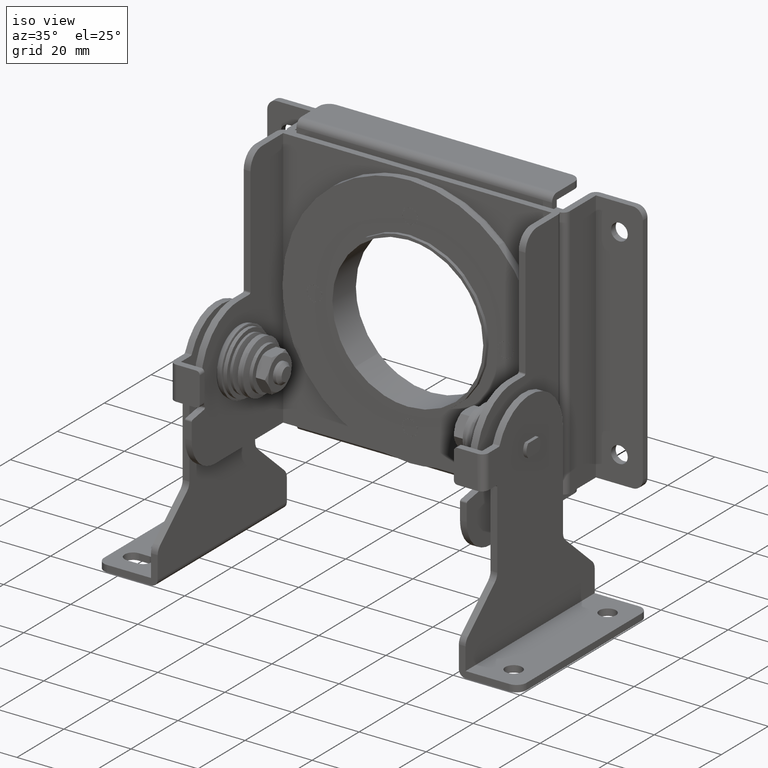
[diagram: clean part render]
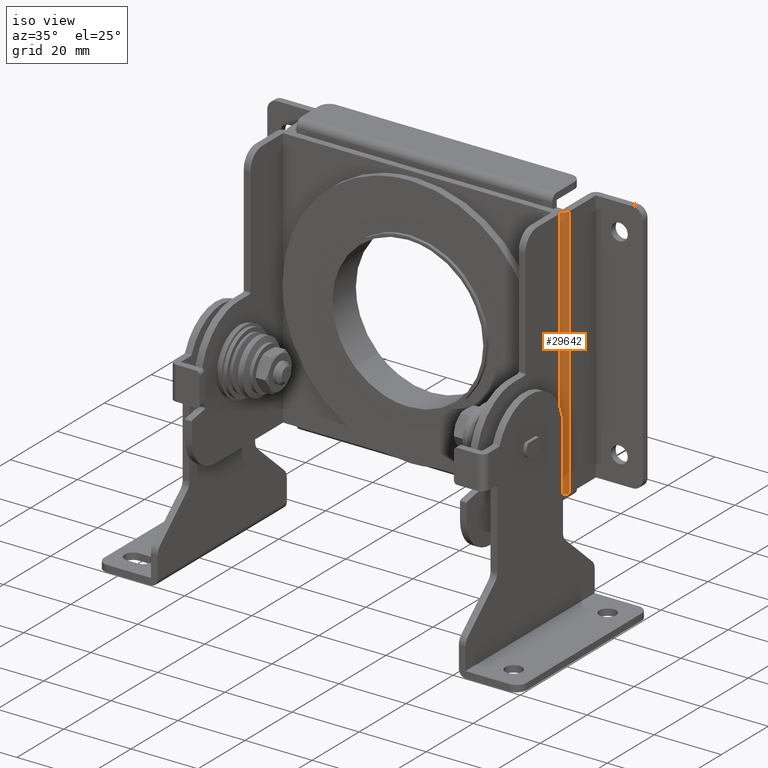
[diagram: same view with one face highlighted and labeled with its STEP entity id]
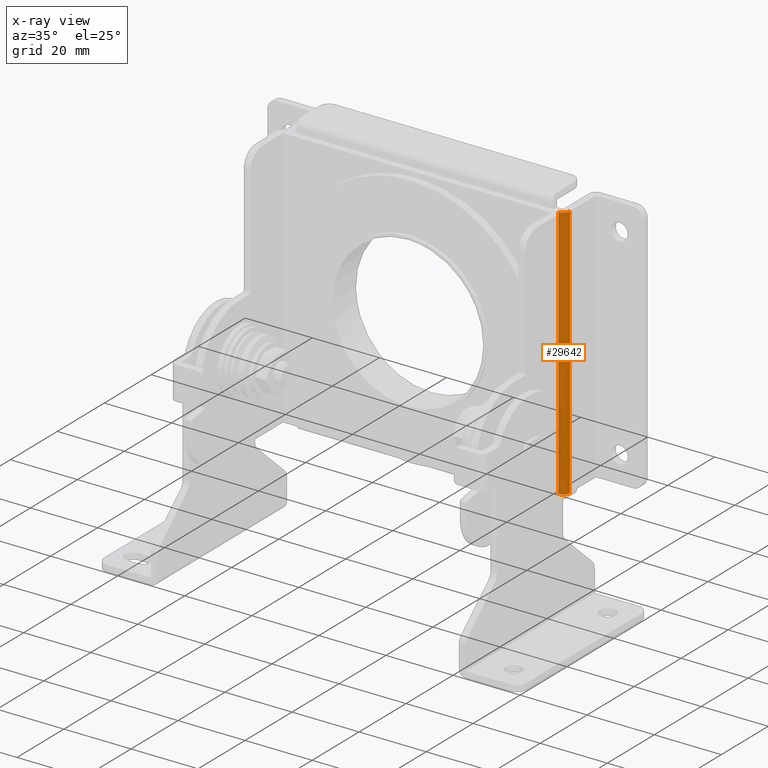
[diagram: x-ray of the same camera — body ghosted, the highlighted face saturated]
A machine part, iso view. The second image highlights one B-rep face of the part: STEP entity #29642.
The next image is the same camera in x-ray: the body ghosted, the highlighted face saturated — about 0% of this face is hidden behind the body in this view.
In plain terms, the highlighted face is a freeform B-spline surface patch.
Its self-contained STEP definition (entity closure, byte-faithful):
#29582=CARTESIAN_POINT('',(39.982546929003263,-15.099923846128339,39.899999999999999));
#29583=CARTESIAN_POINT('',(39.982546929003263,-15.099923846128339,-39.947499999999998));
#29584=CARTESIAN_POINT('',(42.127202684023509,-15.118639973359105,39.899999999999999));
#29585=CARTESIAN_POINT('',(42.127202684023509,-15.118639973359105,-39.947499999999998));
#29586=CARTESIAN_POINT('',(41.996269596843739,-12.977902920930291,39.899999999999999));
#29587=CARTESIAN_POINT('',(41.996269596843739,-12.977902920930291,-39.947499999999998));
#29595=(BOUNDED_SURFACE()B_SPLINE_SURFACE(1,2,((#29582,#29584,#29586),(#29583,#29585,#29587)),.UNSPECIFIED.,.F.,.F.,.U.)B_SPLINE_SURFACE_WITH_KNOTS((2,2),(3,3),(0.0,79.847499999999997),(0.0,3.478498999687470),.UNSPECIFIED.)GEOMETRIC_REPRESENTATION_ITEM()RATIONAL_B_SPLINE_SURFACE(((1.0,0.681998360062499,1.0),(1.0,0.681998360062499,1.0)))REPRESENTATION_ITEM('')SURFACE());
#29596=CARTESIAN_POINT('',(42.0,-13.100000000000000,-38.0));
#29597=VERTEX_POINT('',#29596);
#29598=CARTESIAN_POINT('',(40.0,-15.100000000000000,-38.0));
#29599=VERTEX_POINT('',#29598);
#29600=CARTESIAN_POINT('',(42.0,-13.100000000000000,-38.0));
#29601=CARTESIAN_POINT('',(42.000037244103197,-13.263622988275610,-37.999999999999993));
#29602=CARTESIAN_POINT('',(41.959622064818767,-13.590856978569940,-38.0));
#29603=CARTESIAN_POINT('',(41.787582540151867,-14.036941869646039,-38.000000000000043));
#29604=CARTESIAN_POINT('',(41.536081798049480,-14.403445346082830,-38.000000000000021));
#29605=CARTESIAN_POINT('',(41.238389571807247,-14.686862098449510,-37.999999999999957));
#29606=CARTESIAN_POINT('',(40.877245959528913,-14.915578829337770,-38.000000000000021));
#29607=CARTESIAN_POINT('',(40.458147801220314,-15.065534350745240,-38.000000000000242));
#29608=CARTESIAN_POINT('',(40.147260822395197,-15.100019709072940,-37.999999999999787));
#29609=CARTESIAN_POINT('',(40.0,-15.100000000000000,-38.0));
#29610=B_SPLINE_CURVE_WITH_KNOTS('',3,(#29600,#29601,#29602,#29603,#29604,#29605,#29606,#29607,#29608,#29609),.UNSPECIFIED.,.F.,.U.,(4,1,1,1,1,1,1,4),(0.000000207722202,0.490869984432605,0.981785436436844,1.423606986733687,1.816274020712952,2.208982590388160,2.699880846171298,3.141671488685747),.UNSPECIFIED.);
#29611=EDGE_CURVE('',#29597,#29599,#29610,.T.);
#29612=ORIENTED_EDGE('',*,*,#29611,.F.);
#29613=CARTESIAN_POINT('',(42.0,-13.100000000000000,38.0));
#29614=VERTEX_POINT('',#29613);
#29615=CARTESIAN_POINT('',(42.0,-13.100000000000000,38.0));
#29616=CARTESIAN_POINT('',(42.0,-13.100000000000000,-38.0));
#29617=QUASI_UNIFORM_CURVE('',1,(#29615,#29616),.UNSPECIFIED.,.F.,.U.);
#29618=EDGE_CURVE('',#29614,#29597,#29617,.T.);
#29619=ORIENTED_EDGE('',*,*,#29618,.F.);
#29620=CARTESIAN_POINT('',(40.0,-15.100000000000000,38.0));
#29621=VERTEX_POINT('',#29620);
#29622=CARTESIAN_POINT('',(42.0,-13.100000000000000,38.0));
#29623=CARTESIAN_POINT('',(42.000037244103197,-13.263622988275610,37.999999999999993));
#29624=CARTESIAN_POINT('',(41.959622064818767,-13.590856978569940,38.0));
#29625=CARTESIAN_POINT('',(41.787582540151867,-14.036941869646039,38.000000000000043));
#29626=CARTESIAN_POINT('',(41.536081798049480,-14.403445346082830,38.000000000000021));
#29627=CARTESIAN_POINT('',(41.238389571807247,-14.686862098449510,37.999999999999957));
#29628=CARTESIAN_POINT('',(40.877245959528913,-14.915578829337770,38.000000000000021));
#29629=CARTESIAN_POINT('',(40.458147801220314,-15.065534350745240,38.000000000000242));
#29630=CARTESIAN_POINT('',(40.147260822395197,-15.100019709072940,37.999999999999787));
#29631=CARTESIAN_POINT('',(40.0,-15.100000000000000,38.0));
#29632=B_SPLINE_CURVE_WITH_KNOTS('',3,(#29622,#29623,#29624,#29625,#29626,#29627,#29628,#29629,#29630,#29631),.UNSPECIFIED.,.F.,.U.,(4,1,1,1,1,1,1,4),(0.000000207722202,0.490869984432605,0.981785436436844,1.423606986733687,1.816274020712952,2.208982590388160,2.699880846171298,3.141671488685747),.UNSPECIFIED.);
#29633=EDGE_CURVE('',#29614,#29621,#29632,.T.);
#29634=ORIENTED_EDGE('',*,*,#29633,.T.);
#29635=CARTESIAN_POINT('',(40.0,-15.100000000000000,38.0));
#29636=CARTESIAN_POINT('',(40.0,-15.100000000000000,-38.0));
#29637=QUASI_UNIFORM_CURVE('',1,(#29635,#29636),.UNSPECIFIED.,.F.,.U.);
#29638=EDGE_CURVE('',#29621,#29599,#29637,.T.);
#29639=ORIENTED_EDGE('',*,*,#29638,.T.);
#29640=EDGE_LOOP('',(#29612,#29619,#29634,#29639));
#29641=FACE_OUTER_BOUND('',#29640,.T.);
#29642=ADVANCED_FACE('',(#29641),#29595,.T.);